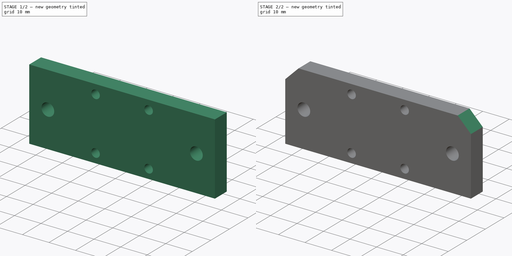
[diagram: build sequence overview — one tinted view per stage of 2, left to right]
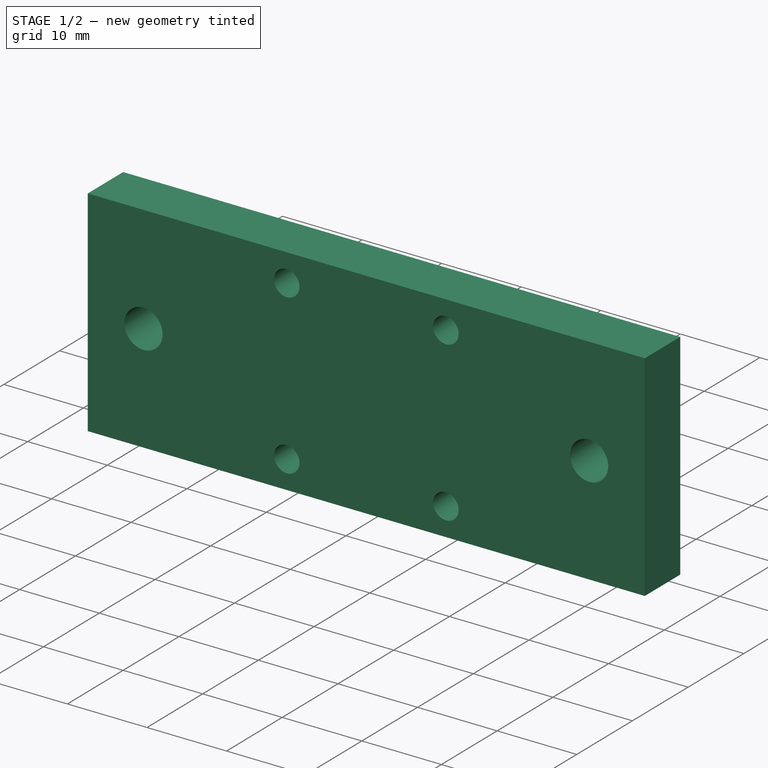
[diagram: stage 1 of 2 — iso view after this stage's code; geometry added in this stage tinted green]
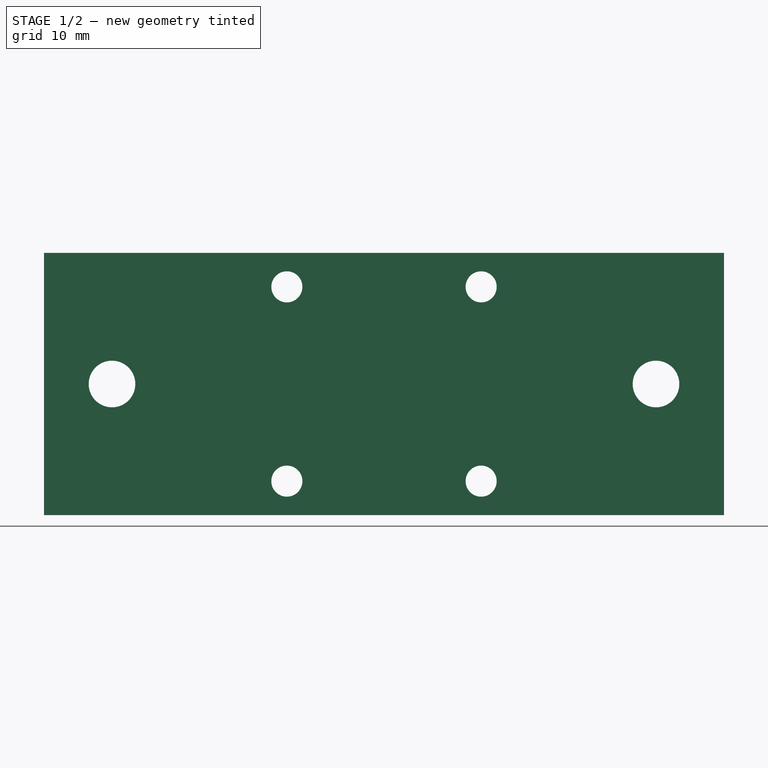
[diagram: stage 1 of 2 — front view after this stage's code; geometry added in this stage tinted green]
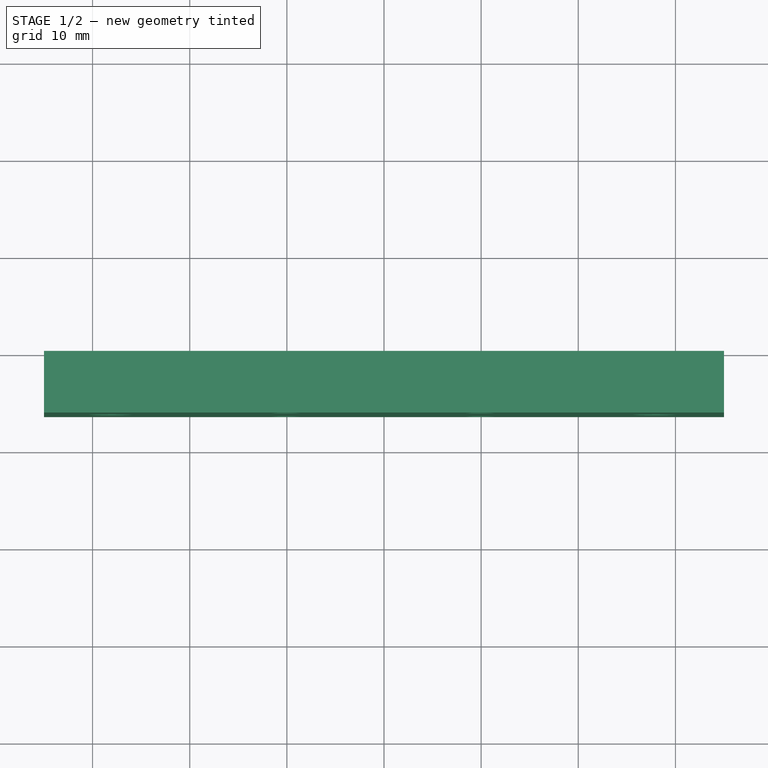
[diagram: stage 1 of 2 — top view after this stage's code; geometry added in this stage tinted green]
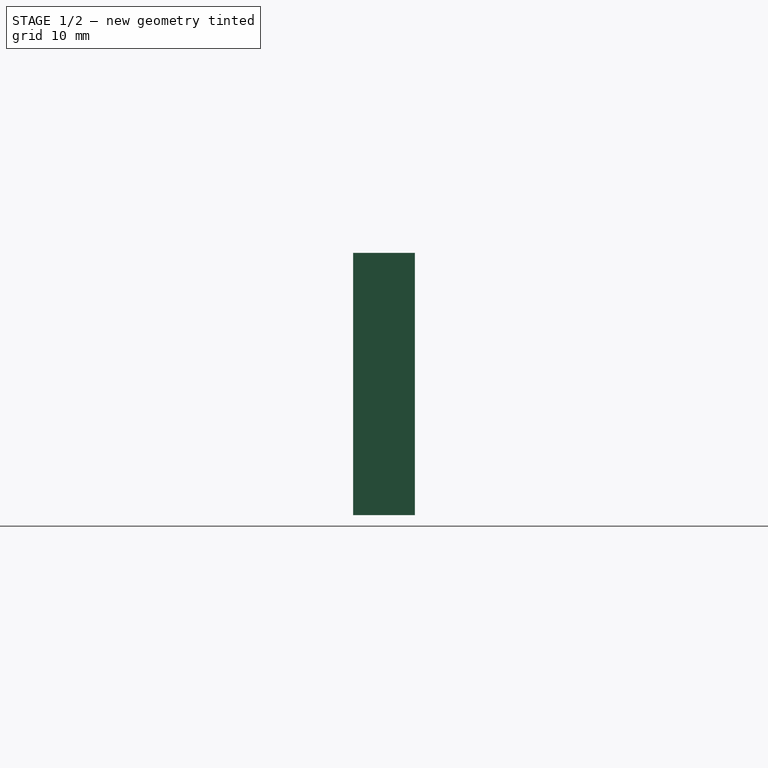
[diagram: stage 1 of 2 — right view after this stage's code; geometry added in this stage tinted green]
FCSTD DOCUMENT  (FreeCAD 0.20R29177 (Git))
Label: y-gantry-block-mount
License: All rights reserved
LicenseURL: http://en.wikipedia.org/wiki/All_rights_reserved
objects: Sketcher::SketchObject×1, PartDesign::Pad×1, PartDesign::Chamfer×1, PartDesign::Body×1
note: 6 computed .brp shape members not serialized (recipe doc carries the construction recipe); baked Part::Feature solids carry a one-line shape summary decoded from their .brp

FEATURE [Sketcher::SketchObject] Sketch017
  FullyConstrained = false
  MapMode = 5
  Placement = pos=(0,0,0) rot=(1,0,0;1.5708rad)
  Support = -> [XZ_Plane001]
  sketch-geometry (24):
    g0: Circle CenterX=-28 CenterY=24 CenterZ=0 NormalX=0 NormalY=0 NormalZ=1 AngleXU=0 Radius=2.4
    g1: Circle CenterX=28 CenterY=24 CenterZ=0 NormalX=0 NormalY=0 NormalZ=1 AngleXU=0 Radius=2.4
    g2: LineSegment StartX=-22.7 StartY=37.5 StartZ=0 EndX=22.7 EndY=37.5 EndZ=0
    g3: LineSegment StartX=22.7 StartY=37.5 StartZ=0 EndX=22.7 EndY=10.5 EndZ=0
    g4: LineSegment StartX=22.7 StartY=10.5 StartZ=0 EndX=-22.7 EndY=10.5 EndZ=0
    g5: LineSegment StartX=-22.7 StartY=10.5 StartZ=0 EndX=-22.7 EndY=37.5 EndZ=0
    g6: LineSegment StartX=-28 StartY=24 StartZ=0 EndX=28 EndY=24 EndZ=0
    g7: LineSegment StartX=-59.5206 StartY=34 StartZ=0 EndX=77.4185 EndY=34 EndZ=0
    g8: LineSegment StartX=77.4185 StartY=34 StartZ=0 EndX=77.4185 EndY=14 EndZ=0
    g9: LineSegment StartX=77.4185 StartY=14 StartZ=0 EndX=-59.5206 EndY=14 EndZ=0
    g10: LineSegment StartX=-59.5206 StartY=14 StartZ=0 EndX=-59.5206 EndY=34 EndZ=0
    g11: LineSegment StartX=-35 StartY=37.5 StartZ=0 EndX=35 EndY=37.5 EndZ=0
    g12: LineSegment StartX=35 StartY=37.5 StartZ=0 EndX=35 EndY=10.5 EndZ=0
    g13: LineSegment StartX=35 StartY=10.5 StartZ=0 EndX=-35 EndY=10.5 EndZ=0
    g14: LineSegment StartX=-35 StartY=10.5 StartZ=0 EndX=-35 EndY=37.5 EndZ=0
    g15: LineSegment StartX=-10 StartY=34 StartZ=0 EndX=10 EndY=34 EndZ=0
    g16: LineSegment StartX=10 StartY=34 StartZ=0 EndX=10 EndY=14 EndZ=0
    g17: LineSegment StartX=10 StartY=14 StartZ=0 EndX=-10 EndY=14 EndZ=0
    g18: LineSegment StartX=-10 StartY=14 StartZ=0 EndX=-10 EndY=34 EndZ=0
    g19: Circle CenterX=-10 CenterY=34 CenterZ=0 NormalX=0 NormalY=0 NormalZ=1 AngleXU=0 Radius=1.6
    g20: Circle CenterX=10 CenterY=34 CenterZ=0 NormalX=0 NormalY=0 NormalZ=1 AngleXU=0 Radius=1.6
    g21: Circle CenterX=10 CenterY=14 CenterZ=0 NormalX=0 NormalY=0 NormalZ=1 AngleXU=0 Radius=1.6
    g22: Circle CenterX=-10 CenterY=14 CenterZ=0 NormalX=0 NormalY=0 NormalZ=1 AngleXU=0 Radius=1.6
    g23: Circle CenterX=-28 CenterY=24 CenterZ=0 NormalX=0 NormalY=0 NormalZ=1 AngleXU=0 Radius=4.5
  constraints (57):
    c: Diameter(g0) = 4.8
    c: Equal(g0,g1)
    c: DistanceX(g0,g1) = 56  'Spacing'
    c: Symmetric(g1,g0,g-2)
    c: DistanceY(g-1,g0) = 24  'YOffset'
    c: Coincident(g2,g3)
    c: Coincident(g3,g4)
    c: Coincident(g4,g5)
    c: Coincident(g5,g2)
    c: Horizontal(g4)
    c: Vertical(g5)
    c: Symmetric(g2,g2,g-2)
    c: DistanceX(g2,g2) = 45.4
    c: DistanceY(g3,g3) = 27
    c: Coincident(g6,g0)
    c: Coincident(g6,g1)
    c: Symmetric(g2,g3,g6)
    c: Coincident(g7,g8)
    c: Coincident(g8,g9)
    c: Coincident(g9,g10)
    c: Coincident(g10,g7)
    c: Horizontal(g7)
    c: Horizontal(g9)
    c: Vertical(g10)
    c: Symmetric(g8,g7,g6)
    c: DistanceY(g8,g8) = 20
    c: DistanceY(g-1,g9) = 14
    c: Coincident(g11,g12)
    c: Coincident(g12,g13)
    c: Coincident(g13,g14)
    c: Coincident(g14,g11)
    c: Vertical(g12)
    c: Vertical(g14)
    c: Tangent(g13,g4)
    c: Tangent(g11,g2)
    c: Symmetric(g11,g11,g-2)
    c: DistanceX(g11,g11) = 70
    c: Coincident(g15,g16)
    c: Coincident(g16,g17)
    c: Coincident(g17,g18)
    c: Coincident(g18,g15)
    c: Horizontal(g17)
    c: Vertical(g18)
    c: Symmetric(g16,g15,g6)
    c: DistanceX(g15,g15) = 20
    c: Symmetric(g15,g15,g-2)
    c: Equal(g16,g15)
    c: Coincident(g19,g15)
    c: Coincident(g20,g15)
    c: Coincident(g21,g16)
    c: Coincident(g22,g17)
    c: Equal(g22,g21)
    c: Equal(g20,g21)
    c: Equal(g19,g20)
    c: Diameter(g19) = 3.2
    c: Coincident(g23,g0)
    c: Diameter(g23) = 9
FEATURE [PartDesign::Pad] Pad006
  Direction = (0,-1,-2e-16)
  Length = 6.35
  Length2 = 10
  Placement = pos=(0,0,0) rot=(1,0,0;1.5708rad)
  Profile = -> Sketch017
  ReferenceAxis = -> Sketch017 [N_Axis]
  Type = 0
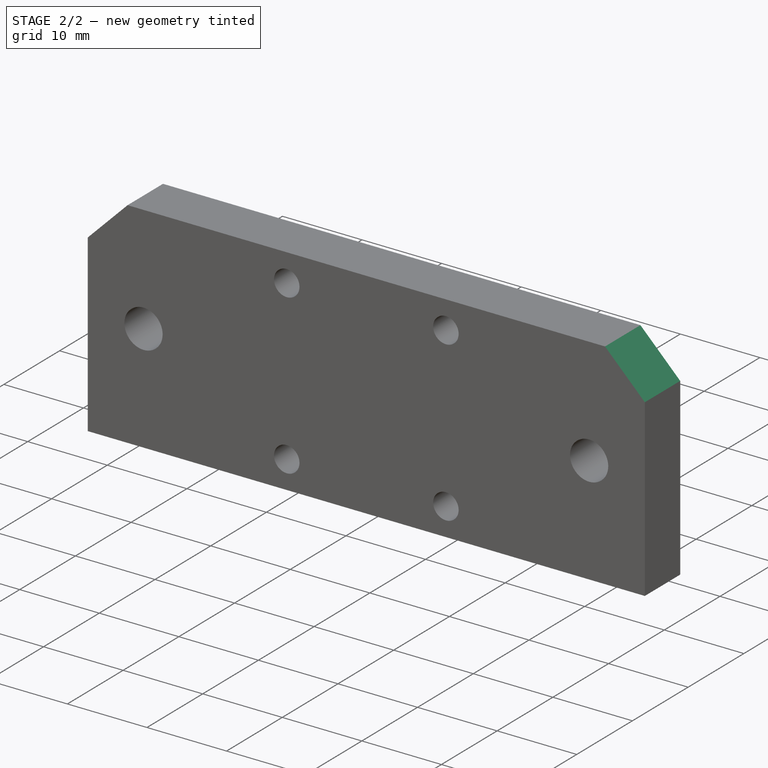
[diagram: stage 2 of 2 — iso view after this stage's code; geometry added in this stage tinted green]
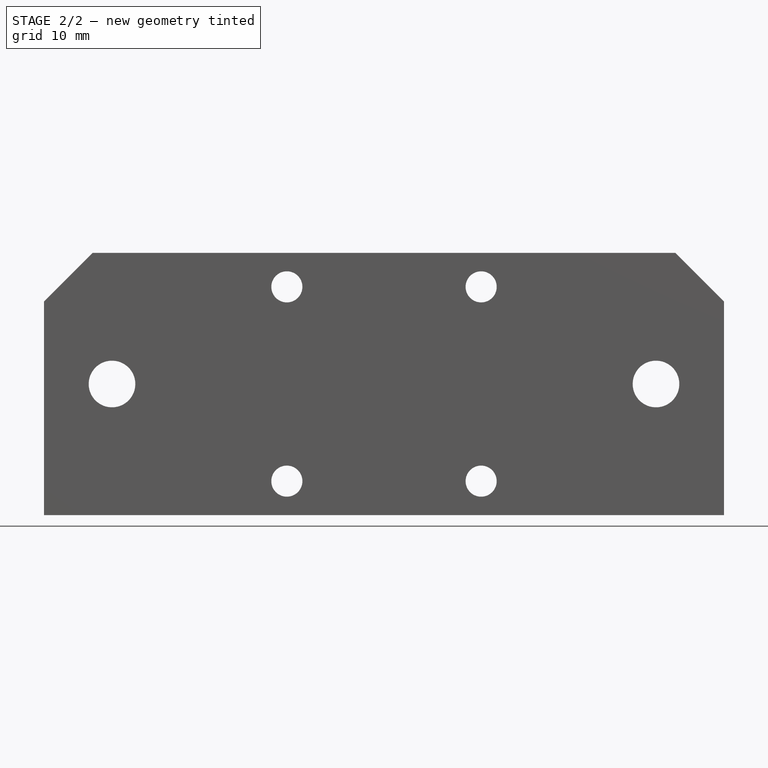
[diagram: stage 2 of 2 — front view after this stage's code; geometry added in this stage tinted green]
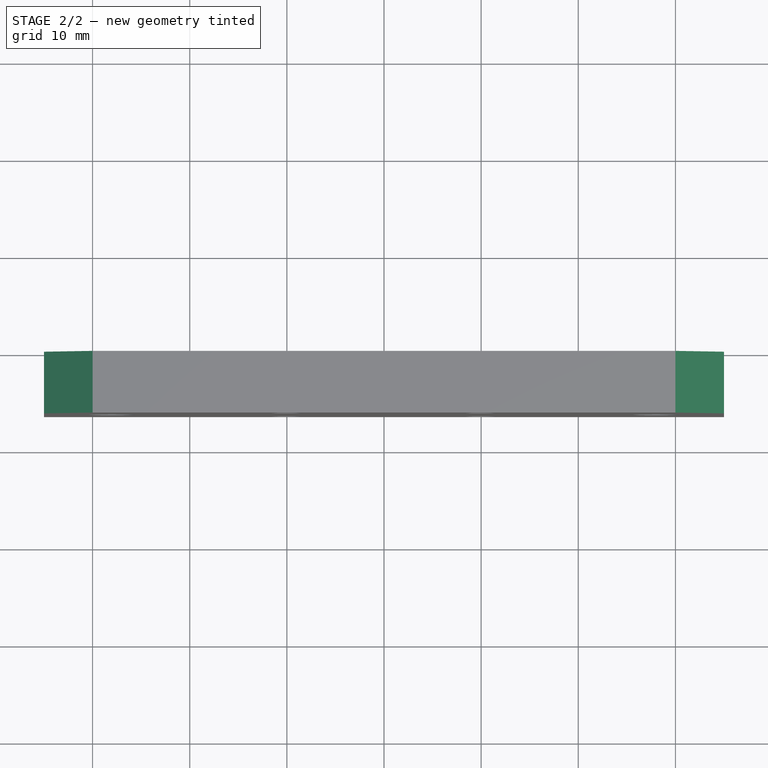
[diagram: stage 2 of 2 — top view after this stage's code; geometry added in this stage tinted green]
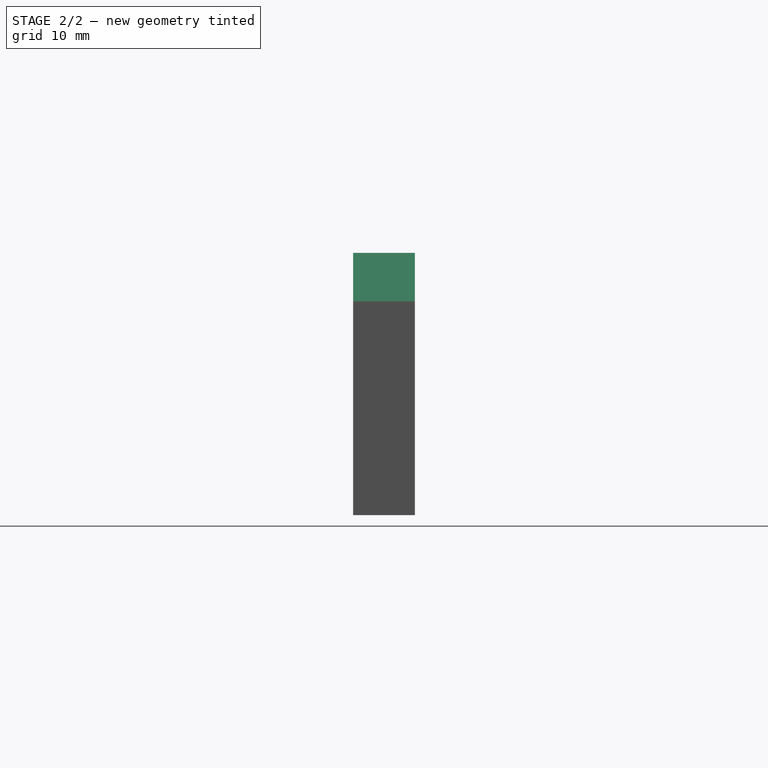
[diagram: stage 2 of 2 — right view after this stage's code; geometry added in this stage tinted green]
FEATURE [PartDesign::Chamfer] Chamfer010
  Angle = 45
  Base = -> Pad006 [Edge2,Edge1]
  BaseFeature = -> Pad006
  ChamferType = 0
  FlipDirection = false
  Placement = pos=(0,0,0) rot=(1,0,0;1.5708rad)
  Size = 5
  Size2 = 1
  SupportTransform = false
  UseAllEdges = false
FEATURE [PartDesign::Body] Body001
  Group = -> [Sketch017,Pad006,Chamfer010]
  Origin = -> Origin001
  Placement = pos=(0,-12,0) rot=(0,0,1;0rad)
  Tip = -> Chamfer010
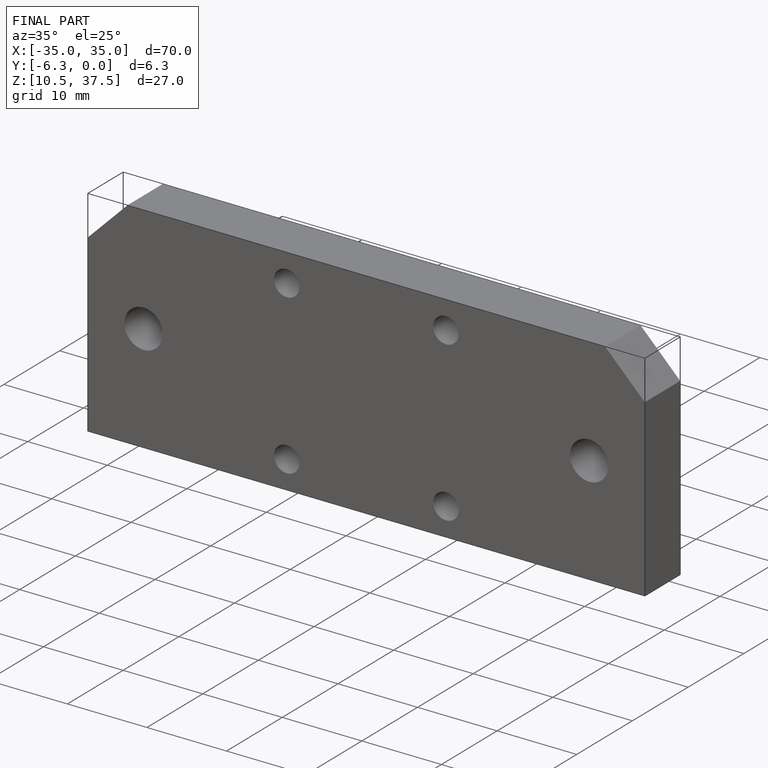
[diagram: finished part — iso view with bounding-box wireframe]
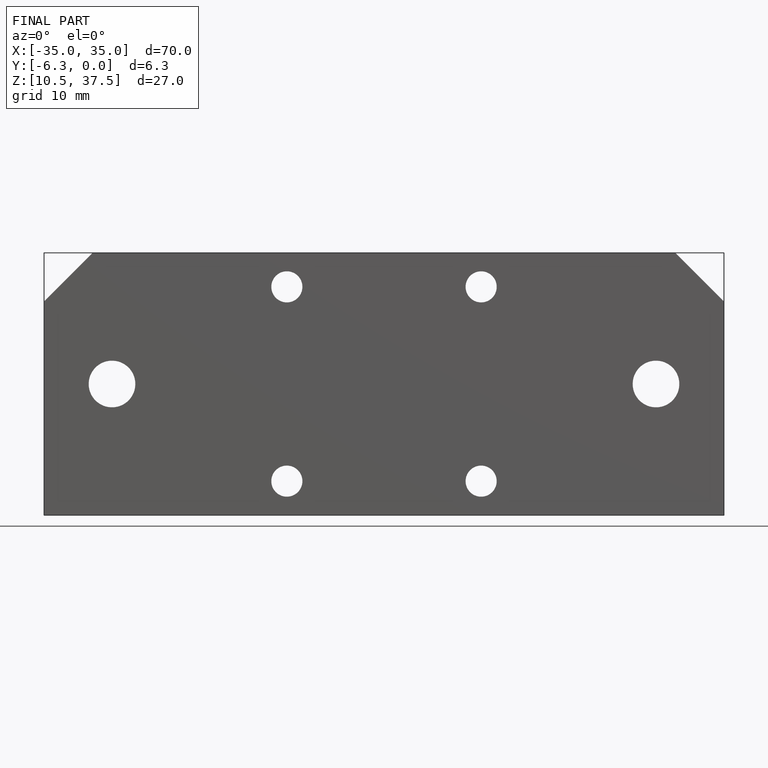
[diagram: finished part — front view with bounding-box wireframe]
